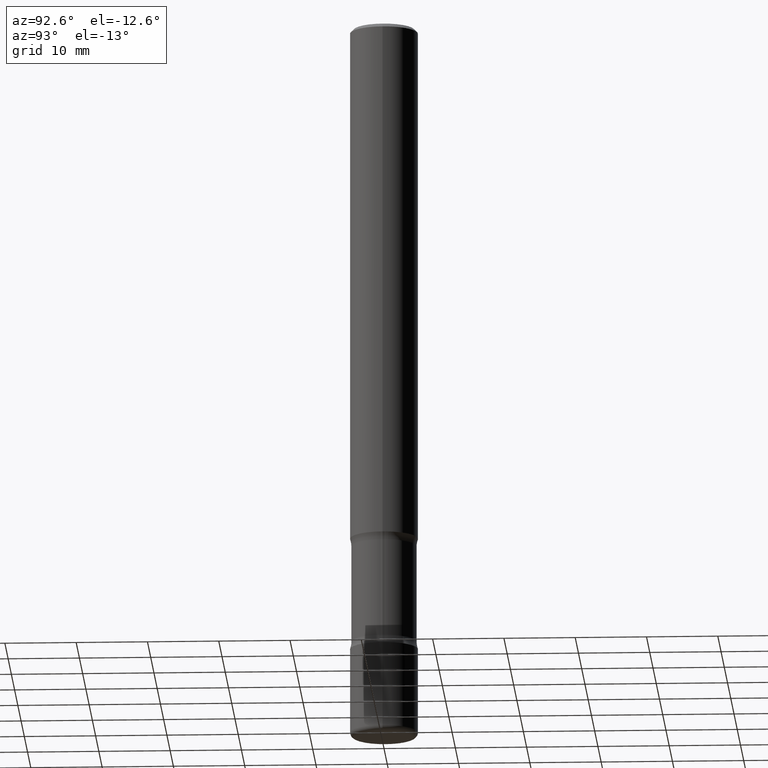
[diagram: clean part render]
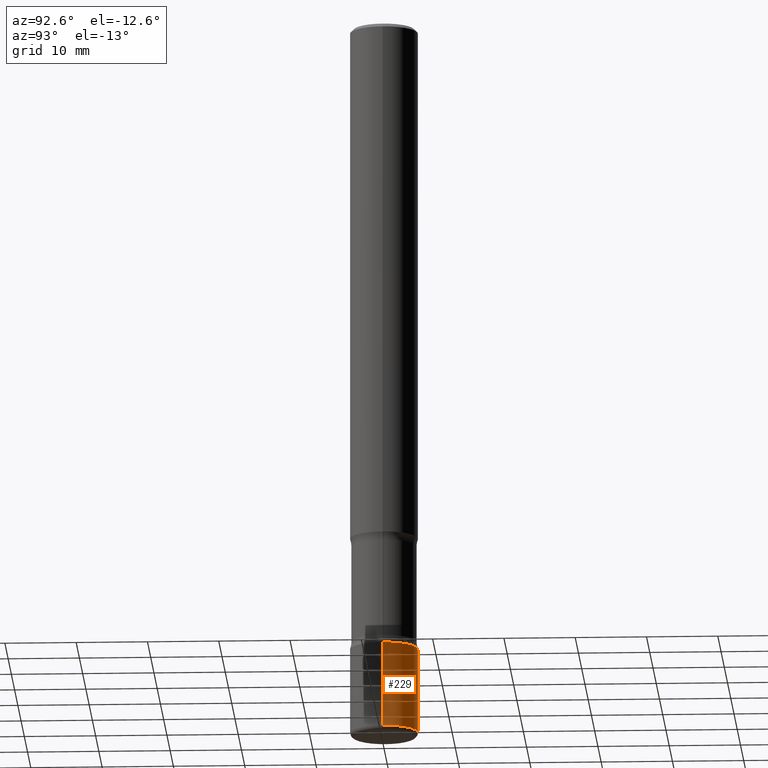
[diagram: same view with one face highlighted and labeled with its STEP entity id]
A machine part, auxiliary view. The second image highlights one B-rep face of the part: STEP entity #229.
In plain terms, the highlighted cylindrical surface (edge-blend (fillet) strip) has radius 4.7625 mm, axis along (-0, 0, 1).
Its self-contained STEP definition (entity closure, byte-faithful):
#52 = CARTESIAN_POINT ( 'NONE',  ( -0.1875000000000000278, -1.170841517102895815E-14, -3.500000000000000000 ) ) ;
#117 = DIRECTION ( 'NONE',  ( 1.000000000000000000, -6.982962677686261189E-15, 0.000000000000000000 ) ) ;
#151 = EDGE_CURVE ( 'NONE', #276, #415, #301, .T. ) ;
#200 = CARTESIAN_POINT ( 'NONE',  ( 9.708511160554992872E-29, -1.386118091520728738E-14, -3.970000000000000195 ) ) ;
#209 = CARTESIAN_POINT ( 'NONE',  ( 0.1874999999999999722, -1.517048641727346397E-14, -3.970000000000000195 ) ) ;
#219 = CARTESIAN_POINT ( 'NONE',  ( 8.559140821647976968E-29, -1.222018468595100934E-14, -3.500000000000000000 ) ) ;
#229 = ADVANCED_FACE ( 'NONE', ( #653 ), #522, .T. ) ;
#236 = LINE ( 'NONE', #795, #250 ) ;
#250 = VECTOR ( 'NONE', #361, 39.37007874015748143 ) ;
#257 = DIRECTION ( 'NONE',  ( 1.000000000000000000, -6.982962677686261189E-15, 0.000000000000000000 ) ) ;
#276 = VERTEX_POINT ( 'NONE', #209 ) ;
#282 = ORIENTED_EDGE ( 'NONE', *, *, #151, .T. ) ;
#295 = LINE ( 'NONE', #729, #553 ) ;
#301 = CIRCLE ( 'NONE', #724, 0.1875000000000000278 ) ;
#313 = ORIENTED_EDGE ( 'NONE', *, *, #430, .F. ) ;
#321 = ORIENTED_EDGE ( 'NONE', *, *, #453, .T. ) ;
#355 = CARTESIAN_POINT ( 'NONE',  ( -0.1874999999999999722, -1.252891328565709953E-14, -3.970000000000000195 ) ) ;
#361 = DIRECTION ( 'NONE',  ( -2.445468806185136877E-29, 3.491481338843145188E-15, 1.000000000000000000 ) ) ;
#383 = AXIS2_PLACEMENT_3D ( 'NONE', #412, #774, #518 ) ;
#390 = VERTEX_POINT ( 'NONE', #414 ) ;
#412 = CARTESIAN_POINT ( 'NONE',  ( 0.000000000000000000, 0.000000000000000000, 0.000000000000000000 ) ) ;
#414 = CARTESIAN_POINT ( 'NONE',  ( 0.1875000000000000278, -1.352949018801718277E-14, -3.500000000000000000 ) ) ;
#415 = VERTEX_POINT ( 'NONE', #355 ) ;
#418 = EDGE_CURVE ( 'NONE', #390, #427, #738, .T. ) ;
#427 = VERTEX_POINT ( 'NONE', #52 ) ;
#430 = EDGE_CURVE ( 'NONE', #276, #390, #295, .T. ) ;
#453 = EDGE_CURVE ( 'NONE', #415, #427, #236, .T. ) ;
#479 = DIRECTION ( 'NONE',  ( -2.445468806185136597E-29, 3.491481338843145583E-15, 1.000000000000000000 ) ) ;
#484 = DIRECTION ( 'NONE',  ( -2.445468806185136877E-29, 3.491481338843145188E-15, 1.000000000000000000 ) ) ;
#518 = DIRECTION ( 'NONE',  ( 1.000000000000000000, -6.982962677686265922E-15, 4.876176775795935793E-29 ) ) ;
#522 = CYLINDRICAL_SURFACE ( 'NONE', #383, 0.1875000000000000278 ) ;
#553 = VECTOR ( 'NONE', #484, 39.37007874015748143 ) ;
#653 = FACE_OUTER_BOUND ( 'NONE', #667, .T. ) ;
#667 = EDGE_LOOP ( 'NONE', ( #282, #321, #799, #313 ) ) ;
#688 = DIRECTION ( 'NONE',  ( -2.445468806185136597E-29, 3.491481338843145583E-15, 1.000000000000000000 ) ) ;
#695 = AXIS2_PLACEMENT_3D ( 'NONE', #219, #479, #117 ) ;
#724 = AXIS2_PLACEMENT_3D ( 'NONE', #200, #688, #257 ) ;
#729 = CARTESIAN_POINT ( 'NONE',  ( 0.1875000000000000278, -1.309305502066175008E-15, 9.142831454617381013E-30 ) ) ;
#738 = CIRCLE ( 'NONE', #695, 0.1875000000000000278 ) ;
#774 = DIRECTION ( 'NONE',  ( -2.445468806185136597E-29, 3.491481338843145583E-15, 1.000000000000000000 ) ) ;
#795 = CARTESIAN_POINT ( 'NONE',  ( -0.1875000000000000278, 1.332267629550188046E-15, -9.223003294227947991E-30 ) ) ;
#799 = ORIENTED_EDGE ( 'NONE', *, *, #418, .F. ) ;